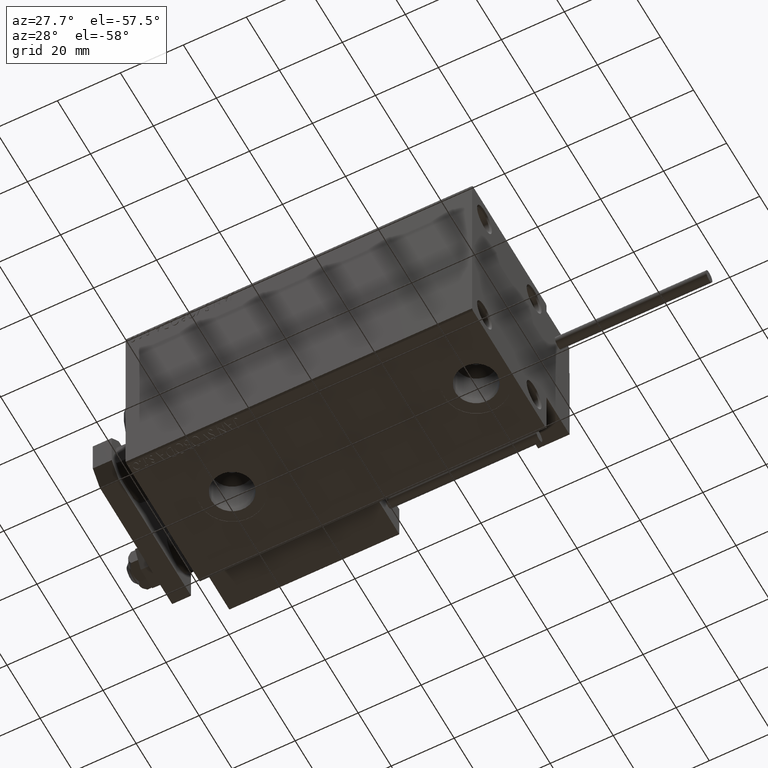
[diagram: clean part render]
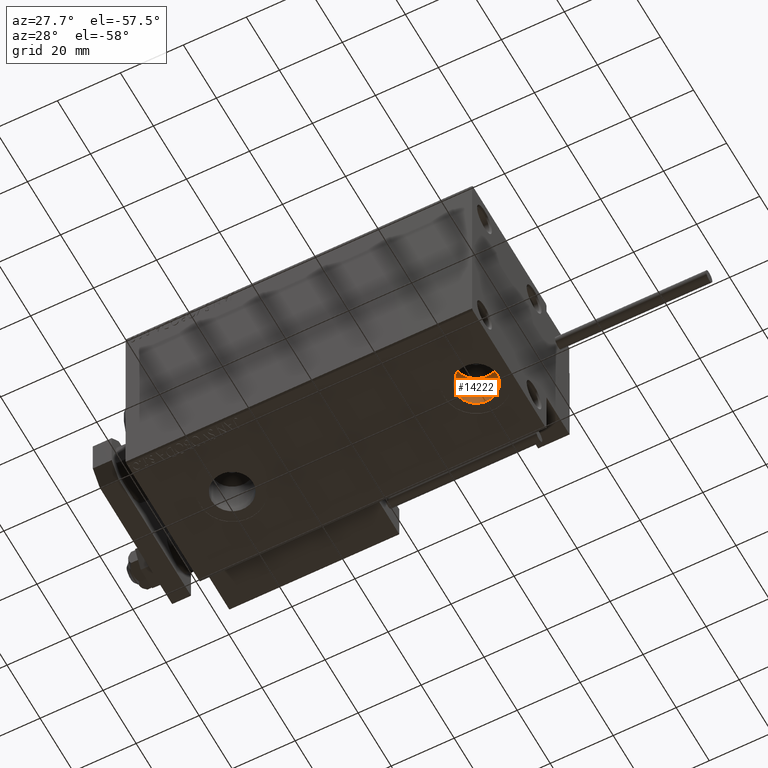
[diagram: same view with one face highlighted and labeled with its STEP entity id]
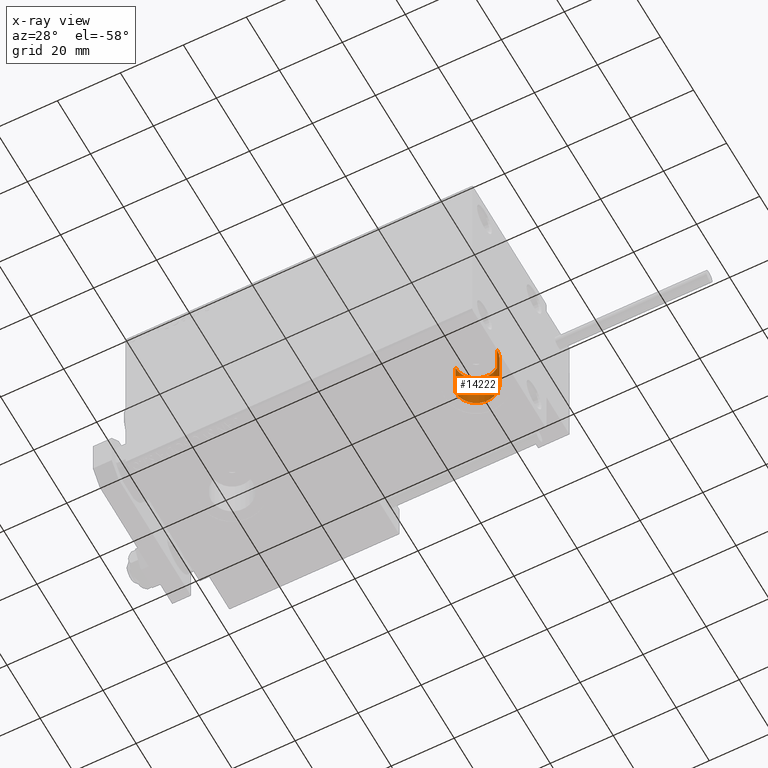
[diagram: x-ray of the same camera — body ghosted, the highlighted face saturated]
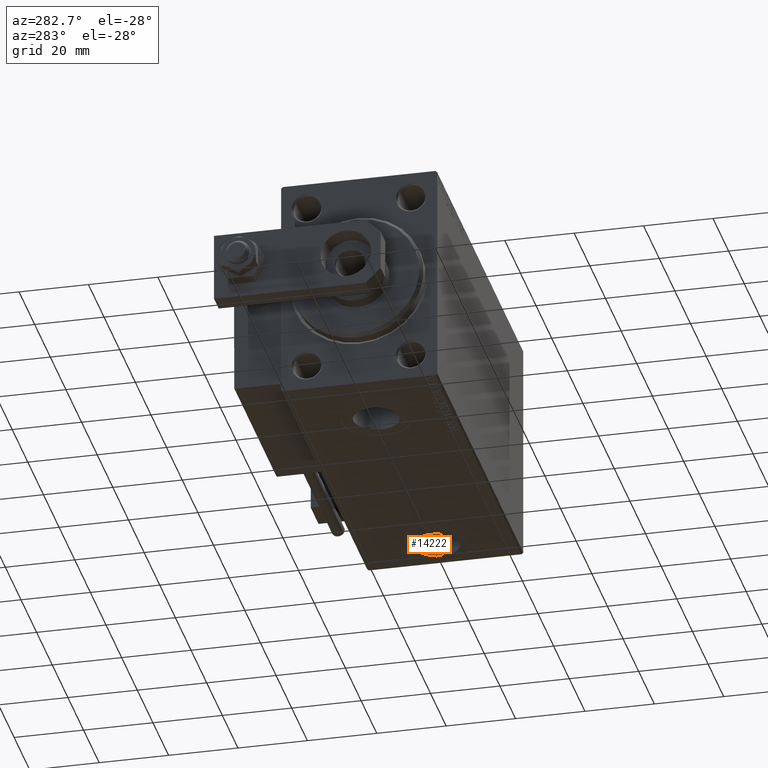
[diagram: same view with one face highlighted and labeled with its STEP entity id]
A machine part, auxiliary view. The second image highlights one B-rep face of the part: STEP entity #14222.
The next image is the same camera in x-ray: the body ghosted, the highlighted face saturated — about 0% of this face is hidden behind the body in this view.
A second angle (auxiliary view) of the same face is appended — the face is thin or edge-on in the first view.
In plain terms, the highlighted cylindrical surface (edge-blend (fillet) strip) has radius 6.58 mm, axis along (-0, -0, -1).
Its self-contained STEP definition (entity closure, byte-faithful):
#83 = CARTESIAN_POINT ( 'NONE',  ( 106.0800000000000125, -1.278904125733397102E-14, -19.50000000000000355 ) ) ;
#4739 = FACE_OUTER_BOUND ( 'NONE', #39194, .T. ) ;
#6366 = ORIENTED_EDGE ( 'NONE', *, *, #38857, .T. ) ;
#7590 = CIRCLE ( 'NONE', #44070, 6.580000000000002736 ) ;
#7715 = LINE ( 'NONE', #30850, #35716 ) ;
#8525 = AXIS2_PLACEMENT_3D ( 'NONE', #25242, #37460, #49436 ) ;
#11433 = DIRECTION ( 'NONE',  ( -0.000000000000000000, -0.000000000000000000, -1.000000000000000000 ) ) ;
#12579 = LINE ( 'NONE', #83, #27434 ) ;
#12726 = CYLINDRICAL_SURFACE ( 'NONE', #36232, 6.580000000000002736 ) ;
#14222 = ADVANCED_FACE ( 'NONE', ( #4739 ), #12726, .F. ) ;
#14264 = VERTEX_POINT ( 'NONE', #40624 ) ;
#14746 = ORIENTED_EDGE ( 'NONE', *, *, #48639, .F. ) ;
#16195 = VERTEX_POINT ( 'NONE', #50439 ) ;
#16725 = DIRECTION ( 'NONE',  ( -1.000000000000000000, 0.000000000000000000, 0.000000000000000000 ) ) ;
#21028 = EDGE_CURVE ( 'NONE', #16195, #14264, #7590, .T. ) ;
#22673 = CARTESIAN_POINT ( 'NONE',  ( 92.92000000000000171, -1.359485885117293007E-14, -32.40000000000000568 ) ) ;
#24839 = ORIENTED_EDGE ( 'NONE', *, *, #21028, .F. ) ;
#25242 = CARTESIAN_POINT ( 'NONE',  ( 99.50000000000000000, -1.359485885117293007E-14, -32.40000000000000568 ) ) ;
#26545 = DIRECTION ( 'NONE',  ( 0.000000000000000000, 0.000000000000000000, -1.000000000000000000 ) ) ;
#27434 = VECTOR ( 'NONE', #28793, 1000.000000000000000 ) ;
#28410 = CARTESIAN_POINT ( 'NONE',  ( 99.50000000000000000, -1.359485885117293007E-14, -19.50000000000000355 ) ) ;
#28793 = DIRECTION ( 'NONE',  ( -0.000000000000000000, -0.000000000000000000, -1.000000000000000000 ) ) ;
#29975 = CARTESIAN_POINT ( 'NONE',  ( 106.0800000000000125, -1.278904125733397102E-14, -32.40000000000000568 ) ) ;
#30850 = CARTESIAN_POINT ( 'NONE',  ( 92.92000000000000171, -1.359485885117293007E-14, -19.50000000000000355 ) ) ;
#34487 = VERTEX_POINT ( 'NONE', #22673 ) ;
#34841 = CIRCLE ( 'NONE', #8525, 6.580000000000002736 ) ;
#35716 = VECTOR ( 'NONE', #11433, 1000.000000000000000 ) ;
#36232 = AXIS2_PLACEMENT_3D ( 'NONE', #28410, #40359, #16725 ) ;
#37460 = DIRECTION ( 'NONE',  ( 0.000000000000000000, 0.000000000000000000, -1.000000000000000000 ) ) ;
#38857 = EDGE_CURVE ( 'NONE', #34487, #51455, #34841, .T. ) ;
#39194 = EDGE_LOOP ( 'NONE', ( #14746, #24839, #47543, #6366 ) ) ;
#39865 = EDGE_CURVE ( 'NONE', #16195, #34487, #7715, .T. ) ;
#40359 = DIRECTION ( 'NONE',  ( -0.000000000000000000, -0.000000000000000000, -1.000000000000000000 ) ) ;
#40624 = CARTESIAN_POINT ( 'NONE',  ( 106.0800000000000125, -1.278904125733397102E-14, -19.50000000000000355 ) ) ;
#43553 = DIRECTION ( 'NONE',  ( -1.000000000000000000, 0.000000000000000000, 0.000000000000000000 ) ) ;
#43806 = CARTESIAN_POINT ( 'NONE',  ( 99.50000000000000000, -1.359485885117293007E-14, -19.50000000000000355 ) ) ;
#44070 = AXIS2_PLACEMENT_3D ( 'NONE', #43806, #26545, #43553 ) ;
#47543 = ORIENTED_EDGE ( 'NONE', *, *, #39865, .T. ) ;
#48639 = EDGE_CURVE ( 'NONE', #14264, #51455, #12579, .T. ) ;
#49436 = DIRECTION ( 'NONE',  ( -1.000000000000000000, 0.000000000000000000, 0.000000000000000000 ) ) ;
#50439 = CARTESIAN_POINT ( 'NONE',  ( 92.92000000000000171, -1.359485885117293007E-14, -19.50000000000000355 ) ) ;
#51455 = VERTEX_POINT ( 'NONE', #29975 ) ;